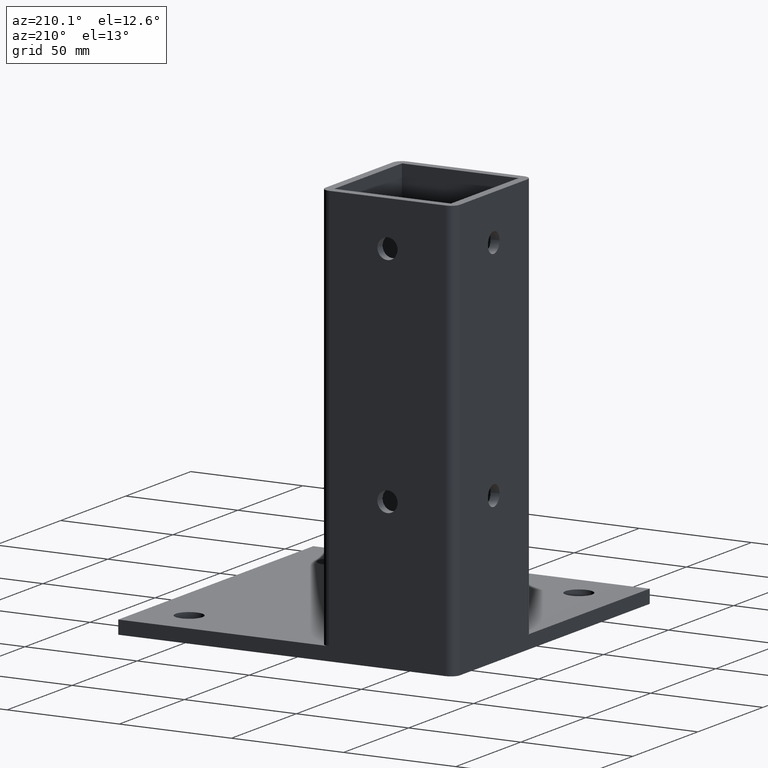
[diagram: clean part render]
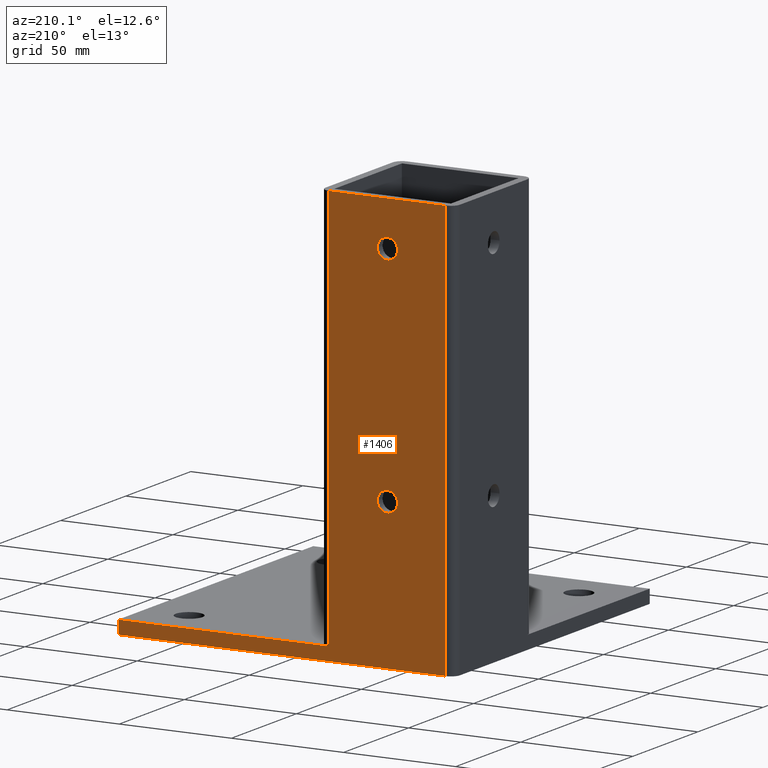
[diagram: same view with one face highlighted and labeled with its STEP entity id]
A machine part, auxiliary view. The second image highlights one B-rep face of the part: STEP entity #1406.
In plain terms, the highlighted planar face has unit normal (0, 1, 0).
Its self-contained STEP definition (entity closure, byte-faithful):
#15 = VERTEX_POINT ( 'NONE', #17 ) ;
#17 = CARTESIAN_POINT ( 'NONE',  ( 4.499999999999997300, 30.00000000000000000, 60.00000000000000000 ) ) ;
#19 = CARTESIAN_POINT ( 'NONE',  ( -26.00000000000001100, 30.00000000000000000, -5.999999999999994700 ) ) ;
#60 = VERTEX_POINT ( 'NONE', #19 ) ;
#61 = VERTEX_POINT ( 'NONE', #1235 ) ;
#62 = VERTEX_POINT ( 'NONE', #1230 ) ;
#63 = VERTEX_POINT ( 'NONE', #1231 ) ;
#64 = VERTEX_POINT ( 'NONE', #1234 ) ;
#68 = VERTEX_POINT ( 'NONE', #1241 ) ;
#210 = PLANE ( 'NONE',  #1360 ) ;
#211 = CARTESIAN_POINT ( 'NONE',  ( -26.00000000000000400, 30.00000000000000000, -6.000000000000000000 ) ) ;
#212 = DIRECTION ( 'NONE',  ( 0.0000000000000000000, 1.000000000000000000, 0.0000000000000000000 ) ) ;
#213 = DIRECTION ( 'NONE',  ( 0.0000000000000000000, 0.0000000000000000000, 1.000000000000000000 ) ) ;
#266 = EDGE_CURVE ( 'NONE', #63, #60, #543, .T. ) ;
#270 = EDGE_CURVE ( 'NONE', #60, #64, #537, .T. ) ;
#273 = EDGE_CURVE ( 'NONE', #62, #61, #533, .T. ) ;
#276 = EDGE_CURVE ( 'NONE', #61, #68, #527, .T. ) ;
#277 = EDGE_CURVE ( 'NONE', #68, #63, #525, .T. ) ;
#286 = EDGE_CURVE ( 'NONE', #64, #62, #998, .T. ) ;
#288 = EDGE_CURVE ( 'NONE', #15, #929, #1002, .T. ) ;
#290 = EDGE_CURVE ( 'NONE', #926, #945, #1004, .T. ) ;
#336 = EDGE_CURVE ( 'NONE', #945, #926, #1076, .T. ) ;
#340 = EDGE_CURVE ( 'NONE', #929, #15, #1082, .T. ) ;
#391 = CARTESIAN_POINT ( 'NONE',  ( 4.728604594531872700E-031, 30.00000000000000000, 160.0000000000000000 ) ) ;
#392 = DIRECTION ( 'NONE',  ( 3.854941057726234600E-016, 1.000000000000000000, -0.0000000000000000000 ) ) ;
#393 = DIRECTION ( 'NONE',  ( 1.000000000000000000, 0.0000000000000000000, 0.0000000000000000000 ) ) ;
#401 = CARTESIAN_POINT ( 'NONE',  ( -6.687256751344573200E-031, 30.00000000000000000, 60.00000000000000000 ) ) ;
#402 = DIRECTION ( 'NONE',  ( -3.854941057726240600E-016, -1.000000000000000000, 5.944228223417393100E-031 ) ) ;
#403 = DIRECTION ( 'NONE',  ( 1.000000000000000000, 0.0000000000000000000, 0.0000000000000000000 ) ) ;
#441 = CARTESIAN_POINT ( 'NONE',  ( -4.500000000000003600, 30.00000000000000000, 160.0000000000000000 ) ) ;
#444 = CARTESIAN_POINT ( 'NONE',  ( -4.499999999999997300, 30.00000000000000000, 60.00000000000000000 ) ) ;
#460 = CARTESIAN_POINT ( 'NONE',  ( 4.500000000000003600, 30.00000000000000000, 160.0000000000000000 ) ) ;
#524 = VECTOR ( 'NONE', #1265, 1000.000000000000000 ) ;
#525 = LINE ( 'NONE', #1264, #524 ) ;
#526 = VECTOR ( 'NONE', #1263, 1000.000000000000000 ) ;
#527 = LINE ( 'NONE', #1262, #526 ) ;
#531 = VECTOR ( 'NONE', #1344, 1000.000000000000000 ) ;
#533 = LINE ( 'NONE', #1343, #531 ) ;
#535 = VECTOR ( 'NONE', #1336, 1000.000000000000000 ) ;
#537 = LINE ( 'NONE', #1335, #535 ) ;
#541 = VECTOR ( 'NONE', #1326, 1000.000000000000000 ) ;
#543 = LINE ( 'NONE', #1325, #541 ) ;
#699 = EDGE_LOOP ( 'NONE', ( #717, #716, #715, #714, #713, #712 ) ) ;
#700 = EDGE_LOOP ( 'NONE', ( #719, #718 ) ) ;
#701 = EDGE_LOOP ( 'NONE', ( #721, #720 ) ) ;
#712 = ORIENTED_EDGE ( 'NONE', *, *, #273, .T. ) ;
#713 = ORIENTED_EDGE ( 'NONE', *, *, #286, .T. ) ;
#714 = ORIENTED_EDGE ( 'NONE', *, *, #270, .T. ) ;
#715 = ORIENTED_EDGE ( 'NONE', *, *, #266, .T. ) ;
#716 = ORIENTED_EDGE ( 'NONE', *, *, #277, .T. ) ;
#717 = ORIENTED_EDGE ( 'NONE', *, *, #276, .T. ) ;
#718 = ORIENTED_EDGE ( 'NONE', *, *, #290, .F. ) ;
#719 = ORIENTED_EDGE ( 'NONE', *, *, #336, .F. ) ;
#720 = ORIENTED_EDGE ( 'NONE', *, *, #340, .T. ) ;
#721 = ORIENTED_EDGE ( 'NONE', *, *, #288, .T. ) ;
#897 = AXIS2_PLACEMENT_3D ( 'NONE', #401, #402, #403 ) ;
#899 = AXIS2_PLACEMENT_3D ( 'NONE', #391, #392, #393 ) ;
#917 = AXIS2_PLACEMENT_3D ( 'NONE', #1287, #1288, #1289 ) ;
#918 = AXIS2_PLACEMENT_3D ( 'NONE', #1293, #1294, #1295 ) ;
#926 = VERTEX_POINT ( 'NONE', #441 ) ;
#929 = VERTEX_POINT ( 'NONE', #444 ) ;
#945 = VERTEX_POINT ( 'NONE', #460 ) ;
#998 = LINE ( 'NONE', #1283, #1000 ) ;
#1000 = VECTOR ( 'NONE', #1284, 1000.000000000000000 ) ;
#1002 = CIRCLE ( 'NONE', #917, 4.499999999999997300 ) ;
#1004 = CIRCLE ( 'NONE', #918, 4.500000000000003600 ) ;
#1076 = CIRCLE ( 'NONE', #899, 4.500000000000003600 ) ;
#1082 = CIRCLE ( 'NONE', #897, 4.499999999999997300 ) ;
#1145 = FACE_BOUND ( 'NONE', #701, .T. ) ;
#1146 = FACE_BOUND ( 'NONE', #700, .T. ) ;
#1147 = FACE_OUTER_BOUND ( 'NONE', #699, .T. ) ;
#1230 = CARTESIAN_POINT ( 'NONE',  ( 26.00000003200000300, 30.00000000000000000, 180.0000000000000000 ) ) ;
#1231 = CARTESIAN_POINT ( 'NONE',  ( 120.0000000000000000, 30.00000000000000000, -5.999999999999987600 ) ) ;
#1234 = CARTESIAN_POINT ( 'NONE',  ( -26.00000000000000400, 30.00000000000000000, 180.0000000000000000 ) ) ;
#1235 = CARTESIAN_POINT ( 'NONE',  ( 26.00000003200000300, 30.00000000000000000, 4.500000567488060500E-008 ) ) ;
#1241 = CARTESIAN_POINT ( 'NONE',  ( 120.0000000000000000, 30.00000000000000000, 6.000001219243673900E-008 ) ) ;
#1262 = CARTESIAN_POINT ( 'NONE',  ( 46.99999999999998600, 29.99999999999999600, 9.000000137510122400E-008 ) ) ;
#1263 = DIRECTION ( 'NONE',  ( 1.000000000000000000, 0.0000000000000000000, 0.0000000000000000000 ) ) ;
#1264 = CARTESIAN_POINT ( 'NONE',  ( 120.0000000000000000, 30.00000000000000000, 87.00000000000000000 ) ) ;
#1265 = DIRECTION ( 'NONE',  ( -0.0000000000000000000, -0.0000000000000000000, -1.000000000000000000 ) ) ;
#1283 = CARTESIAN_POINT ( 'NONE',  ( 47.00000000000000000, 30.00000000000000000, 180.0000000000000000 ) ) ;
#1284 = DIRECTION ( 'NONE',  ( 1.000000000000000000, 0.0000000000000000000, 0.0000000000000000000 ) ) ;
#1287 = CARTESIAN_POINT ( 'NONE',  ( -6.687256751344573200E-031, 30.00000000000000000, 60.00000000000000000 ) ) ;
#1288 = DIRECTION ( 'NONE',  ( -3.854941057726240600E-016, -1.000000000000000000, 5.944228223417393100E-031 ) ) ;
#1289 = DIRECTION ( 'NONE',  ( 1.000000000000000000, 0.0000000000000000000, 0.0000000000000000000 ) ) ;
#1293 = CARTESIAN_POINT ( 'NONE',  ( 4.728604594531872700E-031, 30.00000000000000000, 160.0000000000000000 ) ) ;
#1294 = DIRECTION ( 'NONE',  ( 3.854941057726234600E-016, 1.000000000000000000, -0.0000000000000000000 ) ) ;
#1295 = DIRECTION ( 'NONE',  ( 1.000000000000000000, 0.0000000000000000000, 0.0000000000000000000 ) ) ;
#1325 = CARTESIAN_POINT ( 'NONE',  ( 47.00000000000000000, 30.00000000000000000, -6.000000000000000000 ) ) ;
#1326 = DIRECTION ( 'NONE',  ( -1.000000000000000000, -0.0000000000000000000, -0.0000000000000000000 ) ) ;
#1335 = CARTESIAN_POINT ( 'NONE',  ( -26.00000000000000400, 30.00000000000000000, 87.00000000000000000 ) ) ;
#1336 = DIRECTION ( 'NONE',  ( 0.0000000000000000000, 0.0000000000000000000, 1.000000000000000000 ) ) ;
#1343 = CARTESIAN_POINT ( 'NONE',  ( 26.00000006400000500, 30.00000000000000000, 87.00000000000000000 ) ) ;
#1344 = DIRECTION ( 'NONE',  ( -0.0000000000000000000, -0.0000000000000000000, -1.000000000000000000 ) ) ;
#1360 = AXIS2_PLACEMENT_3D ( 'NONE', #211, #212, #213 ) ;
#1406 = ADVANCED_FACE ( 'NONE', ( #1145, #1146, #1147 ), #210, .T. ) ;